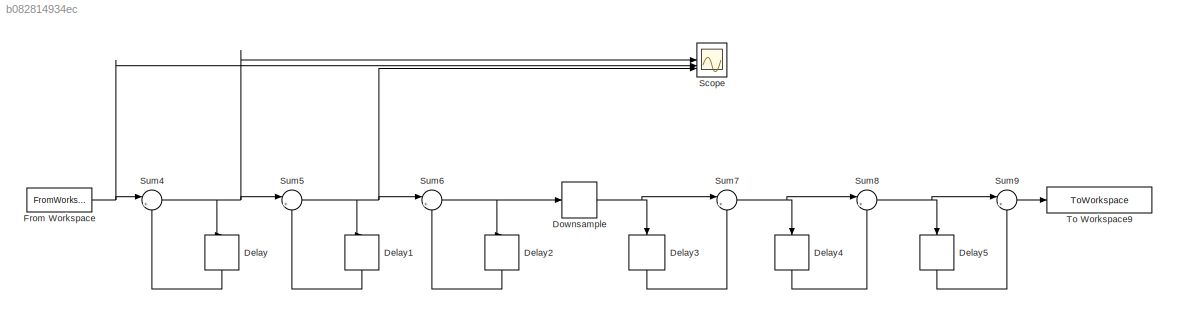
MODEL slx_b082814934ec
KIND model
CONFIG AbsTol = auto
CONFIG EnableMultiTasking = off
CONFIG FixedStep = 1/Fs
CONFIG MaxStep = auto
CONFIG MinStep = auto
CONFIG RelTol = 1e-3
CONFIG SampleTimeConstraint = Unconstrained
CONFIG SolverName = FixedStepAuto
CONFIG StartTime = 0.0
CONFIG StopTime = 1
BLOCK [Delay] Delay
  DelayLength = 1
  InitialCondition = 0
  InputPortMap = u0
  NameLocation = left
BLOCK [Delay] Delay1
  DelayLength = 1
  InitialCondition = 0
  InputPortMap = u0
  NameLocation = left
BLOCK [Delay] Delay2
  DelayLength = 1
  InitialCondition = 0
  InputPortMap = u0
  NameLocation = left
BLOCK [Delay] Delay3
  DelayLength = D
  InitialCondition = 0
  InputPortMap = u0
  NameLocation = left
  SampleTime = NN/Fs
BLOCK [Delay] Delay4
  DelayLength = D
  InitialCondition = 0
  InputPortMap = u0
  NameLocation = left
  SampleTime = NN/Fs
BLOCK [Delay] Delay5
  DelayLength = D
  InitialCondition = 0
  InputPortMap = u0
  NameLocation = left
  SampleTime = NN/Fs
BLOCK [DownSample] Downsample
  AllowArbitraryFixedInput = on
  InputProcessing = Elements as channels (sample based)
  N = NN
BLOCK [FromWorkspace] From Workspace
  VariableName = PDM_signal
BLOCK [Scope] Scope
  Floating = off
  NumInputPorts = 3
  ScopeSpecificationString = Simulink.scopes.TimeScopeBlockCfg('CurrentConfiguration', extmgr.ConfigurationSet(extmgr.Configuration('Core','General UI',true),extmgr.Configuration('Core','Source UI',true),extmgr.Configuration('Sources','WiredSimulink',true),extmgr.Configuration('Visuals','Time Domain',true,'SerializedDisplays',{struct('MinYLimReal','-11.22255','MaxYLimReal','75.93727','YLabelReal','','MinYLimMag','0.00000','Ma...<+1423ch>
BLOCK [Sum] Sum4
  Inputs = |++
BLOCK [Sum] Sum5
  Inputs = |++
BLOCK [Sum] Sum6
  Inputs = |++
BLOCK [Sum] Sum7
  Inputs = |+-
BLOCK [Sum] Sum8
  Inputs = |+-
BLOCK [Sum] Sum9
  Inputs = |+-
BLOCK [ToWorkspace] To Workspace9
  FixptAsFi = on
  MaxDataPoints = inf
  SampleTime = NN/Fs
  SaveFormat = Timeseries
  VariableName = CIC_output_made
LINE Delay1:1 -> Sum5:2
LINE Delay2:1 -> Sum6:2
LINE Delay3:1 -> Sum7:2
LINE Delay4:1 -> Sum8:2
LINE Delay5:1 -> Sum9:2
LINE Delay:1 -> Sum4:2
NET Downsample:1 -> Delay3:1, Sum7:1
NET From Workspace:1 -> Scope:2, Sum4:1
NET Sum4:1 -> Delay:1, Scope:1, Sum5:1
NET Sum5:1 -> Delay1:1, Scope:3, Sum6:1
NET Sum6:1 -> Delay2:1, Downsample:1
NET Sum7:1 -> Delay4:1, Sum8:1
NET Sum8:1 -> Delay5:1, Sum9:1
LINE Sum9:1 -> To Workspace9:1
note: NET lines group one-source signal fan-out (src -> all destinations, sorted); 1:1 wires keep LINE
